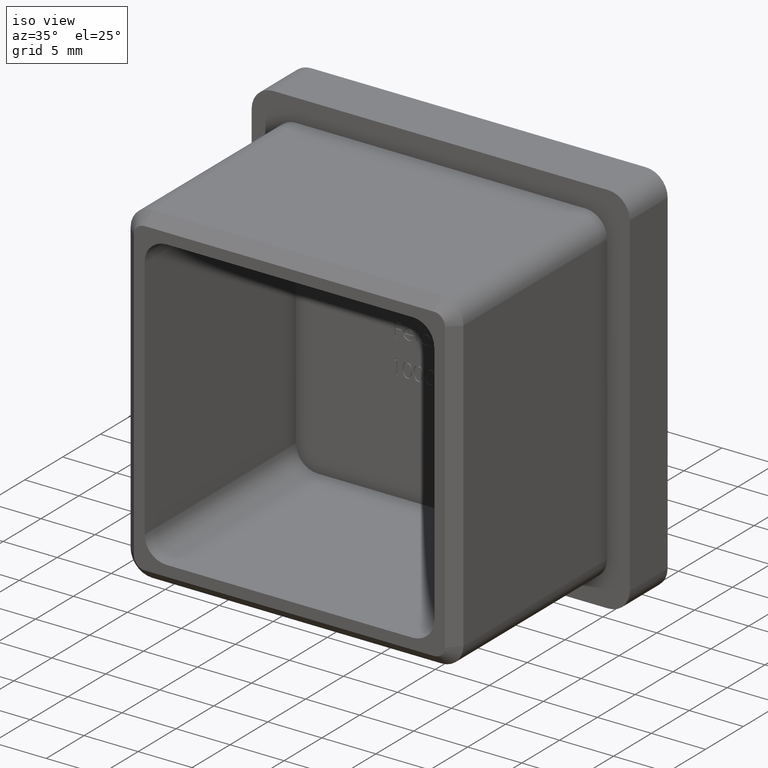
[diagram: clean part render]
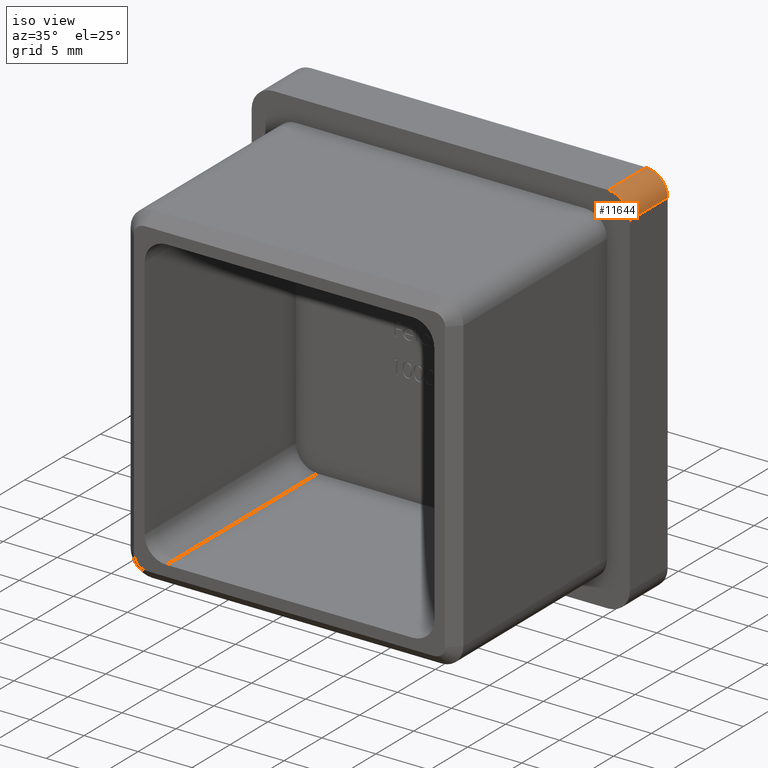
[diagram: same view with one face highlighted and labeled with its STEP entity id]
A machine part, iso view. The second image highlights one B-rep face of the part: STEP entity #11644.
In plain terms, the highlighted cylindrical surface (edge-blend (fillet) strip) has radius 2 mm, axis along (0, -1, 0).
Its self-contained STEP definition (entity closure, byte-faithful):
#251 = CARTESIAN_POINT ( 'NONE',  ( 15.50000000000000400, 5.000000000000000000, 17.50000000000000000 ) ) ;
#609 = ORIENTED_EDGE ( 'NONE', *, *, #5934, .F. ) ;
#682 = CYLINDRICAL_SURFACE ( 'NONE', #14547, 2.000000000000000000 ) ;
#1195 = ORIENTED_EDGE ( 'NONE', *, *, #9890, .F. ) ;
#1312 = ORIENTED_EDGE ( 'NONE', *, *, #3872, .F. ) ;
#1406 = LINE ( 'NONE', #5790, #10398 ) ;
#1718 = CARTESIAN_POINT ( 'NONE',  ( 17.50000000000000400, 5.000000000000000000, 15.50000000000000000 ) ) ;
#1866 = EDGE_CURVE ( 'NONE', #7875, #15407, #6651, .T. ) ;
#1961 = DIRECTION ( 'NONE',  ( 0.0000000000000000000, 0.0000000000000000000, -1.000000000000000000 ) ) ;
#2063 = VERTEX_POINT ( 'NONE', #14733 ) ;
#3042 = DIRECTION ( 'NONE',  ( 0.0000000000000000000, -1.000000000000000000, 0.0000000000000000000 ) ) ;
#3237 = CARTESIAN_POINT ( 'NONE',  ( 15.50000000000000500, 0.0000000000000000000, 15.50000000000000000 ) ) ;
#3872 = EDGE_CURVE ( 'NONE', #15407, #2063, #13147, .T. ) ;
#3932 = FACE_OUTER_BOUND ( 'NONE', #12048, .T. ) ;
#5790 = CARTESIAN_POINT ( 'NONE',  ( 15.50000000000000400, 5.000000000000000000, 17.50000000000000000 ) ) ;
#5934 = EDGE_CURVE ( 'NONE', #13060, #7875, #1406, .T. ) ;
#6651 = CIRCLE ( 'NONE', #8091, 2.000000000000001800 ) ;
#7871 = CARTESIAN_POINT ( 'NONE',  ( 15.50000000000000500, 5.000000000000000000, 15.50000000000000000 ) ) ;
#7875 = VERTEX_POINT ( 'NONE', #251 ) ;
#8091 = AXIS2_PLACEMENT_3D ( 'NONE', #8209, #15440, #10450 ) ;
#8209 = CARTESIAN_POINT ( 'NONE',  ( 15.50000000000000500, 5.000000000000000000, 15.50000000000000000 ) ) ;
#8359 = CARTESIAN_POINT ( 'NONE',  ( 15.50000000000000400, 0.0000000000000000000, 17.50000000000000000 ) ) ;
#9201 = DIRECTION ( 'NONE',  ( -0.0000000000000000000, -1.000000000000000000, -0.0000000000000000000 ) ) ;
#9459 = CARTESIAN_POINT ( 'NONE',  ( 17.50000000000000400, 5.000000000000000000, 15.50000000000000000 ) ) ;
#9854 = VECTOR ( 'NONE', #11329, 1000.000000000000000 ) ;
#9890 = EDGE_CURVE ( 'NONE', #2063, #13060, #11019, .T. ) ;
#10126 = AXIS2_PLACEMENT_3D ( 'NONE', #3237, #9201, #12956 ) ;
#10398 = VECTOR ( 'NONE', #14491, 1000.000000000000000 ) ;
#10450 = DIRECTION ( 'NONE',  ( 0.0000000000000000000, 0.0000000000000000000, 1.000000000000000000 ) ) ;
#11019 = CIRCLE ( 'NONE', #10126, 2.000000000000001800 ) ;
#11329 = DIRECTION ( 'NONE',  ( 0.0000000000000000000, -1.000000000000000000, 0.0000000000000000000 ) ) ;
#11644 = ADVANCED_FACE ( 'NONE', ( #3932 ), #682, .T. ) ;
#12048 = EDGE_LOOP ( 'NONE', ( #15547, #609, #1195, #1312 ) ) ;
#12956 = DIRECTION ( 'NONE',  ( 0.0000000000000000000, 0.0000000000000000000, 1.000000000000000000 ) ) ;
#13060 = VERTEX_POINT ( 'NONE', #8359 ) ;
#13147 = LINE ( 'NONE', #1718, #9854 ) ;
#14491 = DIRECTION ( 'NONE',  ( -0.0000000000000000000, 1.000000000000000000, -0.0000000000000000000 ) ) ;
#14547 = AXIS2_PLACEMENT_3D ( 'NONE', #7871, #3042, #1961 ) ;
#14733 = CARTESIAN_POINT ( 'NONE',  ( 17.50000000000000400, 0.0000000000000000000, 15.50000000000000000 ) ) ;
#15407 = VERTEX_POINT ( 'NONE', #9459 ) ;
#15440 = DIRECTION ( 'NONE',  ( 0.0000000000000000000, 1.000000000000000000, 0.0000000000000000000 ) ) ;
#15547 = ORIENTED_EDGE ( 'NONE', *, *, #1866, .F. ) ;